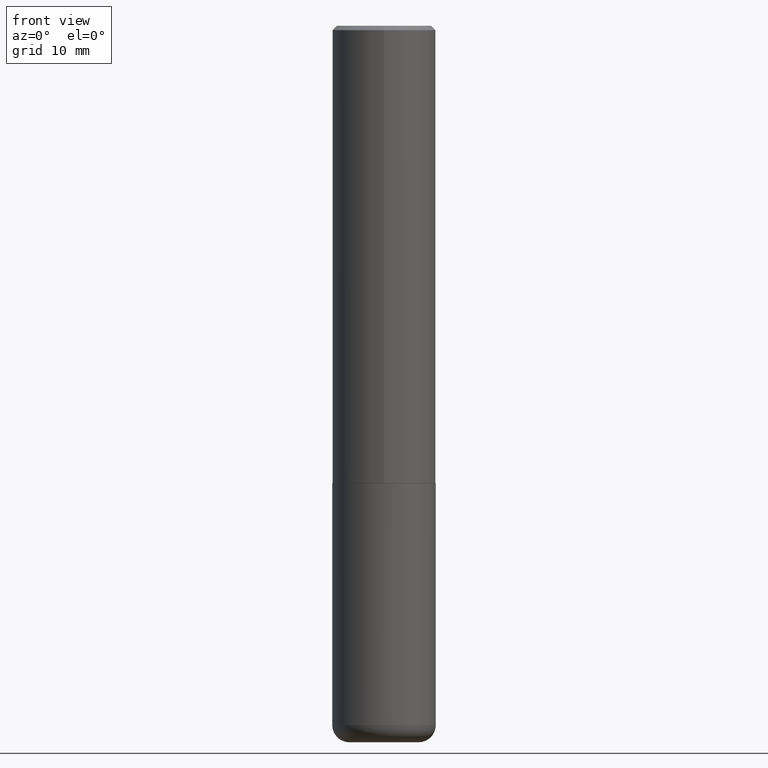
[diagram: clean part render]
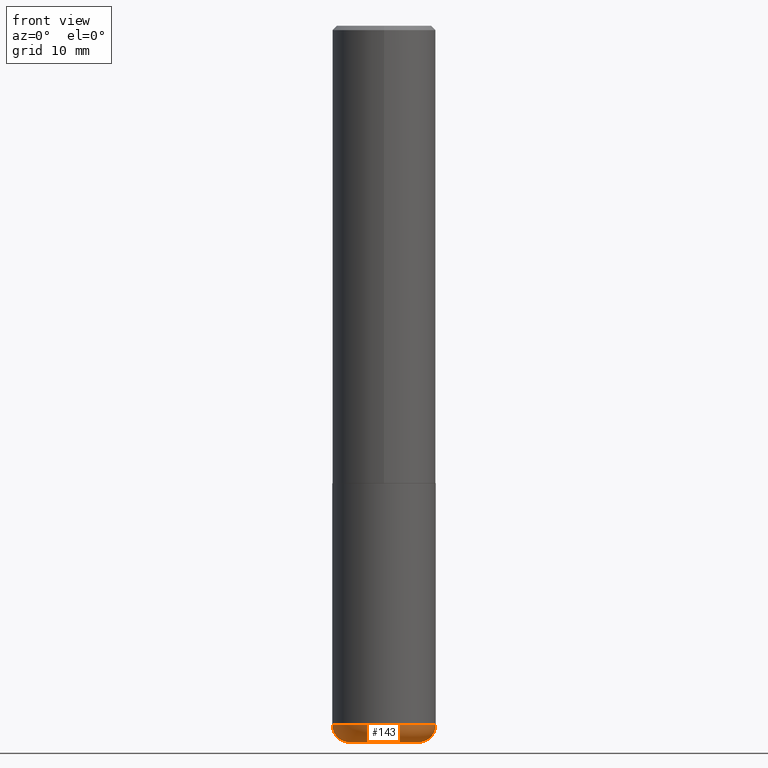
[diagram: same view with one face highlighted and labeled with its STEP entity id]
A machine part, front view. The second image highlights one B-rep face of the part: STEP entity #143.
In plain terms, the highlighted toroidal blend (fillet) surface has major radius 4.0005 mm and minor (blend) radius 1.999 mm.
Its self-contained STEP definition (entity closure, byte-faithful):
#6 = AXIS2_PLACEMENT_3D ( 'NONE', #250, #386, #7 ) ;
#7 = DIRECTION ( 'NONE',  ( -1.000000000000000000, 7.105427357600997914E-15, 0.000000000000000000 ) ) ;
#22 = CIRCLE ( 'NONE', #6, 0.07869999999999993667 ) ;
#26 = EDGE_CURVE ( 'NONE', #367, #370, #254, .T. ) ;
#33 = AXIS2_PLACEMENT_3D ( 'NONE', #294, #295, #314 ) ;
#42 = CARTESIAN_POINT ( 'NONE',  ( 7.798600022924401307E-29, -1.113433398957079310E-14, -3.189000000000000501 ) ) ;
#53 = VERTEX_POINT ( 'NONE', #57 ) ;
#57 = CARTESIAN_POINT ( 'NONE',  ( 0.2361999999999999655, -1.278370977404028805E-14, -3.189000000000000501 ) ) ;
#85 = TOROIDAL_SURFACE ( 'NONE', #399, 0.1575000000000000011, 0.07869999999999995055 ) ;
#108 = CIRCLE ( 'NONE', #289, 0.07869999999999993667 ) ;
#111 = CARTESIAN_POINT ( 'NONE',  ( -0.1575000000000000011, -9.873020404910514350E-15, -3.267700000000000049 ) ) ;
#143 = ADVANCED_FACE ( 'NONE', ( #207 ), #85, .T. ) ;
#165 = DIRECTION ( 'NONE',  ( -2.445468806185136597E-29, 3.491481338843145583E-15, 1.000000000000000000 ) ) ;
#188 = EDGE_CURVE ( 'NONE', #304, #53, #381, .T. ) ;
#194 = EDGE_CURVE ( 'NONE', #367, #304, #22, .T. ) ;
#196 = EDGE_LOOP ( 'NONE', ( #220, #203, #330, #293 ) ) ;
#203 = ORIENTED_EDGE ( 'NONE', *, *, #26, .T. ) ;
#207 = FACE_OUTER_BOUND ( 'NONE', #196, .T. ) ;
#220 = ORIENTED_EDGE ( 'NONE', *, *, #194, .F. ) ;
#250 = CARTESIAN_POINT ( 'NONE',  ( -0.1575000000000000011, -1.001522918074863550E-14, -3.189000000000000501 ) ) ;
#254 = CIRCLE ( 'NONE', #364, 0.1575000000000000011 ) ;
#257 = DIRECTION ( 'NONE',  ( -2.445468806185136597E-29, 3.491481338843145583E-15, 1.000000000000000000 ) ) ;
#277 = CARTESIAN_POINT ( 'NONE',  ( 0.1575000000000000011, -1.250893019267333313E-14, -3.267700000000000049 ) ) ;
#289 = AXIS2_PLACEMENT_3D ( 'NONE', #299, #373, #344 ) ;
#293 = ORIENTED_EDGE ( 'NONE', *, *, #188, .F. ) ;
#294 = CARTESIAN_POINT ( 'NONE',  ( 7.798600022924401307E-29, -1.113433398957079310E-14, -3.189000000000000501 ) ) ;
#295 = DIRECTION ( 'NONE',  ( -2.445468806185136597E-29, 3.491481338843145583E-15, 1.000000000000000000 ) ) ;
#296 = CARTESIAN_POINT ( 'NONE',  ( 7.991058417971171713E-29, -1.140911357093774644E-14, -3.267700000000000049 ) ) ;
#299 = CARTESIAN_POINT ( 'NONE',  ( 0.1575000000000000011, -1.223415061130637979E-14, -3.189000000000000501 ) ) ;
#304 = VERTEX_POINT ( 'NONE', #380 ) ;
#314 = DIRECTION ( 'NONE',  ( 1.000000000000000000, -6.982962677686265133E-15, 0.000000000000000000 ) ) ;
#330 = ORIENTED_EDGE ( 'NONE', *, *, #359, .T. ) ;
#344 = DIRECTION ( 'NONE',  ( 1.000000000000000000, -6.982962677686275388E-15, 0.000000000000000000 ) ) ;
#359 = EDGE_CURVE ( 'NONE', #370, #53, #108, .T. ) ;
#361 = DIRECTION ( 'NONE',  ( 1.000000000000000000, -6.982962677686261977E-15, 0.000000000000000000 ) ) ;
#364 = AXIS2_PLACEMENT_3D ( 'NONE', #296, #257, #361 ) ;
#367 = VERTEX_POINT ( 'NONE', #111 ) ;
#370 = VERTEX_POINT ( 'NONE', #277 ) ;
#373 = DIRECTION ( 'NONE',  ( -6.982962677686266711E-15, -1.000000000000000000, 3.491481338843145583E-15 ) ) ;
#380 = CARTESIAN_POINT ( 'NONE',  ( -0.2361999999999999655, -9.456032047705438285E-15, -3.189000000000000501 ) ) ;
#381 = CIRCLE ( 'NONE', #33, 0.2361999999999999933 ) ;
#386 = DIRECTION ( 'NONE',  ( 7.105427357601001859E-15, 1.000000000000000000, -3.491481338843145583E-15 ) ) ;
#397 = DIRECTION ( 'NONE',  ( 1.000000000000000000, -6.982962677686266711E-15, 4.883557194083113462E-29 ) ) ;
#399 = AXIS2_PLACEMENT_3D ( 'NONE', #42, #165, #397 ) ;